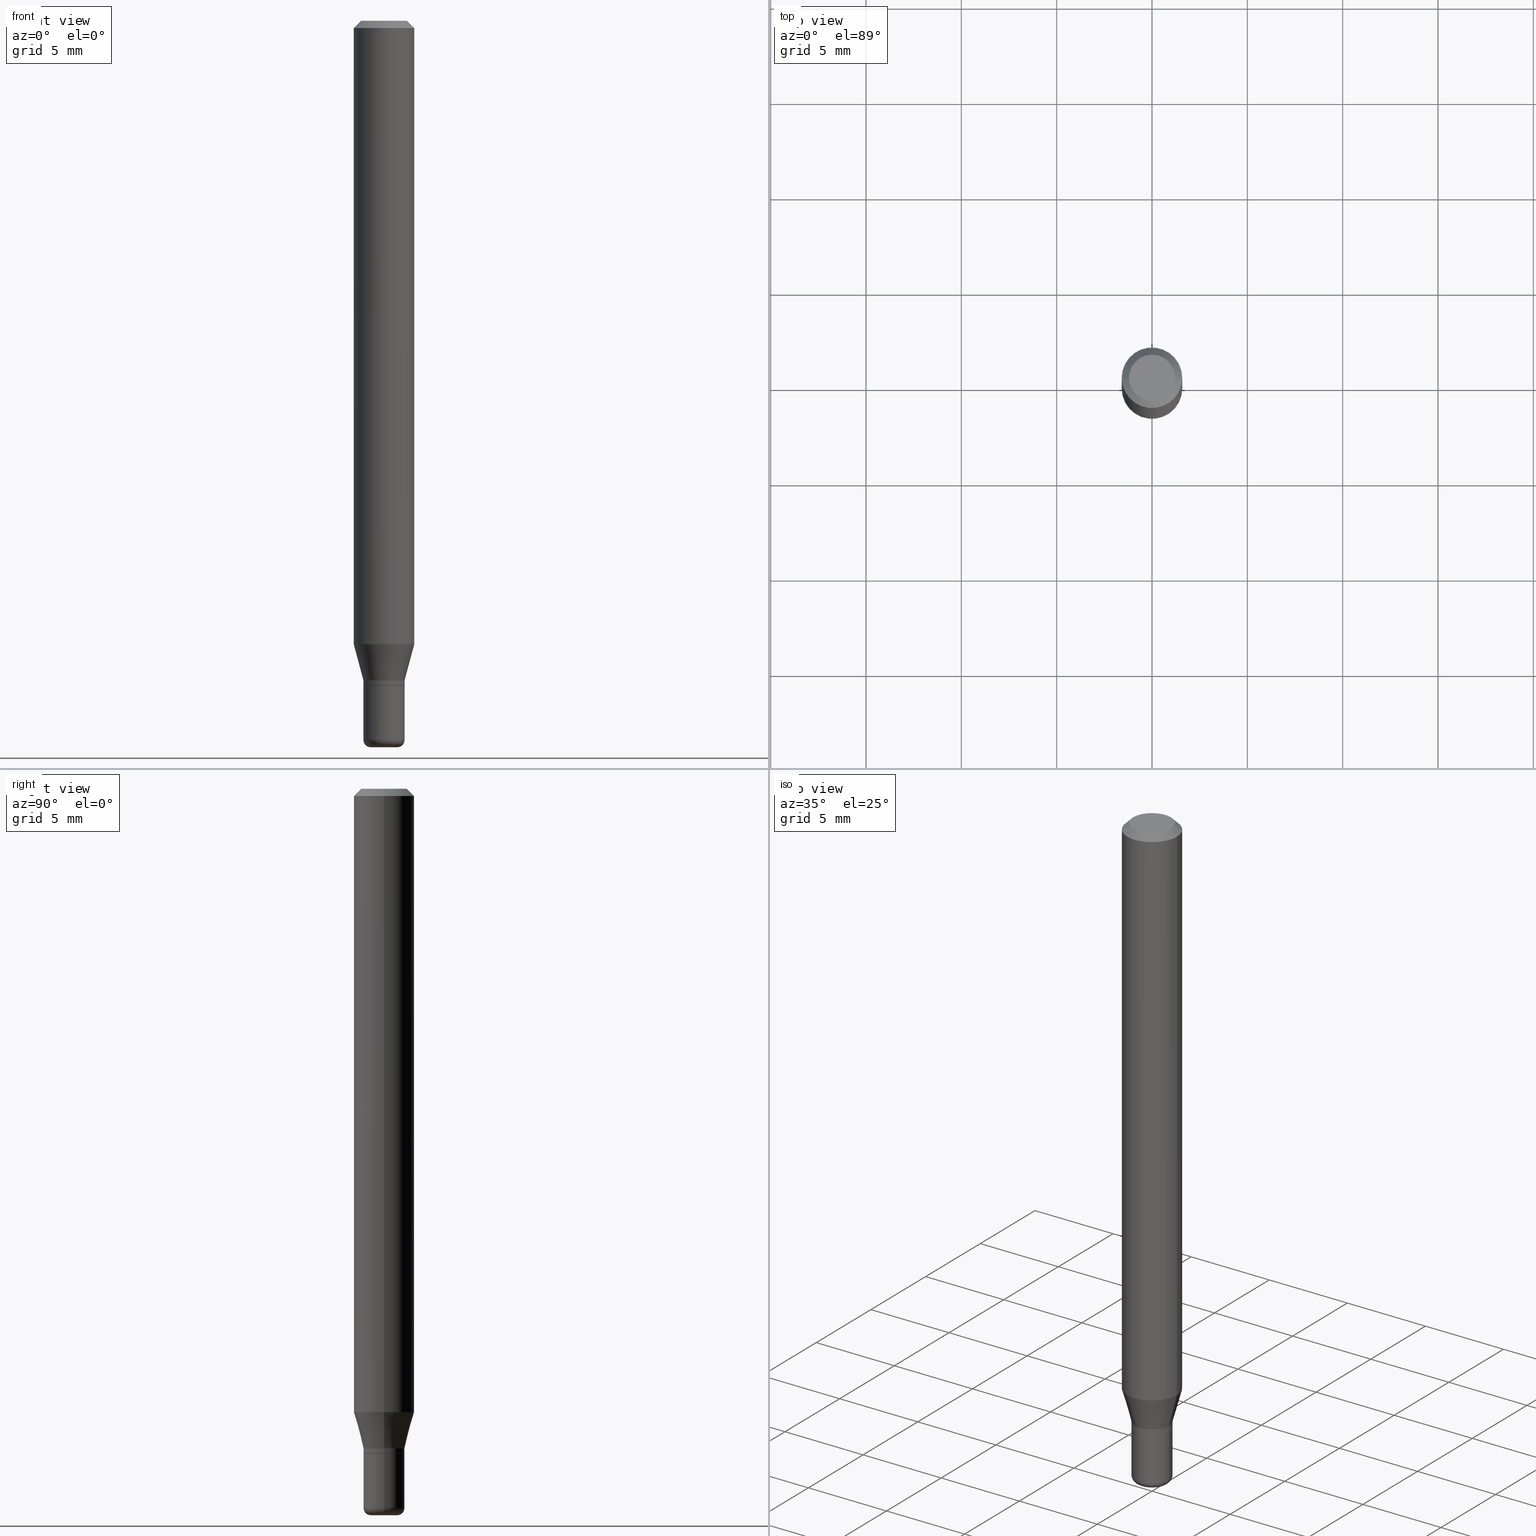
[diagram: canonical four-view strip — front | top / right | iso, engineering-drawing reading convention]
A machine part, canonical four-view strip (front | top / right | iso — engineering-drawing reading convention). The complete STEP part file that produces these views, byte-faithful:
ISO-10303-21;
HEADER;
FILE_DESCRIPTION (( 'STEP AP203' ),
    '1' );
FILE_NAME ('08571.STEP',
    '2024-02-29T19:49:54',
    ( '' ),
    ( '' ),
    'SwSTEP 2.0',
    'SolidWorks 2023',
    '' );
FILE_SCHEMA (( 'CONFIG_CONTROL_DESIGN' ));
ENDSEC;

DATA;
#1 = CARTESIAN_POINT ( 'NONE',  ( -0.06250000000000000000, 3.840629472727455270E-16, -0.01499999999999970281 ) ) ;
#2 = EDGE_CURVE ( 'NONE', #114, #216, #454, .T. ) ;
#3 = ORIENTED_EDGE ( 'NONE', *, *, #85, .F. ) ;
#4 = CARTESIAN_POINT ( 'NONE',  ( 3.316907271900976589E-16, 0.04750000000000000749, -2.925296391183627249E-17 ) ) ;
#5 = CIRCLE ( 'NONE', #23, 0.06250000000000000000 ) ;
#6 = ORIENTED_EDGE ( 'NONE', *, *, #135, .F. ) ;
#7 = LOCAL_TIME ( 14, 49, 54.00000000000000000, #291 ) ;
#8 =( CONVERSION_BASED_UNIT ( 'INCH', #206 ) LENGTH_UNIT ( ) NAMED_UNIT ( #435 ) );
#9 = VERTEX_POINT ( 'NONE', #452 ) ;
#10 = FACE_OUTER_BOUND ( 'NONE', #53, .T. ) ;
#11 = APPROVAL ( #104, 'UNSPECIFIED' ) ;
#12 = DIRECTION ( 'NONE',  ( -2.445468806185136877E-29, 3.491481338843145188E-15, 1.000000000000000000 ) ) ;
#13 = FACE_OUTER_BOUND ( 'NONE', #518, .T. ) ;
#14 = AXIS2_PLACEMENT_3D ( 'NONE', #64, #374, #252 ) ;
#15 = AXIS2_PLACEMENT_3D ( 'NONE', #50, #281, #285 ) ;
#16 = FACE_OUTER_BOUND ( 'NONE', #345, .T. ) ;
#17 = EDGE_LOOP ( 'NONE', ( #144, #395, #354, #402 ) ) ;
#18 = PERSON_AND_ORGANIZATION ( #307, #495 ) ;
#19 = LINE ( 'NONE', #178, #339 ) ;
#20 = EDGE_CURVE ( 'NONE', #303, #200, #211, .T. ) ;
#21 = CALENDAR_DATE ( 2024, 29, 2 ) ;
#22 = DIRECTION ( 'NONE',  ( 1.000000000000000000, -6.982962677686273810E-15, 0.000000000000000000 ) ) ;
#23 = AXIS2_PLACEMENT_3D ( 'NONE', #484, #133, #51 ) ;
#24 = CONICAL_SURFACE ( 'NONE', #131, 0.06250000000000000000, 0.7853981633974488341 ) ;
#25 = DIRECTION ( 'NONE',  ( 1.000000000000000000, -6.982962677686276966E-15, 0.000000000000000000 ) ) ;
#26 = DIRECTION ( 'NONE',  ( 1.000000000000000000, -6.982962677686262766E-15, 0.000000000000000000 ) ) ;
#27 = ADVANCED_FACE ( 'NONE', ( #93 ), #467, .T. ) ;
#28 = PERSON_AND_ORGANIZATION ( #307, #495 ) ;
#29 = AXIS2_PLACEMENT_3D ( 'NONE', #141, #298, #459 ) ;
#30 = AXIS2_PLACEMENT_3D ( 'NONE', #165, #404, #326 ) ;
#31 = LINE ( 'NONE', #150, #358 ) ;
#32 = ORIENTED_EDGE ( 'NONE', *, *, #212, .T. ) ;
#33 = DIRECTION ( 'NONE',  ( -2.445468806185136597E-29, 3.491481338843145583E-15, 1.000000000000000000 ) ) ;
#34 = VERTEX_POINT ( 'NONE', #320 ) ;
#35 = ADVANCED_FACE ( 'NONE', ( #361 ), #166, .T. ) ;
#36 = DIRECTION ( 'NONE',  ( 1.000000000000000000, -6.982962677686276966E-15, 0.000000000000000000 ) ) ;
#37 = ORIENTED_EDGE ( 'NONE', *, *, #338, .F. ) ;
#38 = AXIS2_PLACEMENT_3D ( 'NONE', #86, #48, #134 ) ;
#39 = CARTESIAN_POINT ( 'NONE',  ( 3.356405936489099934E-29, -4.792058137562217412E-15, -1.372500000000000275 ) ) ;
#40 = LOCAL_TIME ( 14, 49, 54.00000000000000000, #498 ) ;
#41 = DIRECTION ( 'NONE',  ( -1.000000000000000000, 6.982962677686266711E-15, 0.000000000000000000 ) ) ;
#42 = ORIENTED_EDGE ( 'NONE', *, *, #101, .F. ) ;
#43 = ADVANCED_FACE ( 'NONE', ( #482 ), #327, .T. ) ;
#44 = FACE_OUTER_BOUND ( 'NONE', #516, .T. ) ;
#45 = CARTESIAN_POINT ( 'NONE',  ( 3.330728514024156148E-29, -4.755397583504364259E-15, -1.362000000000000099 ) ) ;
#46 = CARTESIAN_POINT ( 'NONE',  ( 0.000000000000000000, 0.000000000000000000, 0.000000000000000000 ) ) ;
#47 = AXIS2_PLACEMENT_3D ( 'NONE', #89, #244, #405 ) ;
#48 = DIRECTION ( 'NONE',  ( -2.445468806185136597E-29, 3.491481338843145583E-15, 1.000000000000000000 ) ) ;
#49 = ORIENTED_EDGE ( 'NONE', *, *, #429, .F. ) ;
#50 = CARTESIAN_POINT ( 'NONE',  ( 3.668203209277704895E-29, -5.237222008264718177E-15, -1.500000000000000222 ) ) ;
#51 = DIRECTION ( 'NONE',  ( 1.000000000000000000, -6.982962677686266711E-15, 0.000000000000000000 ) ) ;
#52 = ORIENTED_EDGE ( 'NONE', *, *, #264, .T. ) ;
#53 = EDGE_LOOP ( 'NONE', ( #511, #479 ) ) ;
#54 = CARTESIAN_POINT ( 'NONE',  ( 0.04249999999999998918, -2.967759138016663056E-16, 2.072375129713272151E-30 ) ) ;
#55 = VERTEX_POINT ( 'NONE', #490 ) ;
#56 = CIRCLE ( 'NONE', #147, 0.06250000000000000000 ) ;
#57 = APPROVAL_PERSON_ORGANIZATION ( #28, #246, #258 ) ;
#58 = EDGE_CURVE ( 'NONE', #216, #114, #5, .T. ) ;
#59 = CARTESIAN_POINT ( 'NONE',  ( 0.04250000000000000999, -5.052173497306030910E-15, -1.362000000000000099 ) ) ;
#60 = APPROVAL_ROLE ( '' ) ;
#61 = APPROVAL_DATE_TIME ( #336, #246 ) ;
#62 = CIRCLE ( 'NONE', #129, 0.06250000000000000000 ) ;
#63 = PERSON_AND_ORGANIZATION ( #307, #495 ) ;
#64 = CARTESIAN_POINT ( 'NONE',  ( 3.330728514024156148E-29, -4.755397583504364259E-15, -1.362000000000000099 ) ) ;
#65 = EDGE_CURVE ( 'NONE', #234, #55, #269, .T. ) ;
#66 = DATE_AND_TIME ( #21, #7 ) ;
#67 = CARTESIAN_POINT ( 'NONE',  ( 3.668203209277632395E-31, -5.237222008264614861E-17, -0.01499999999999970281 ) ) ;
#68 = VECTOR ( 'NONE', #394, 39.37007874015748143 ) ;
#69 = LOCAL_TIME ( 14, 49, 54.00000000000000000, #458 ) ;
#70 = CC_DESIGN_PERSON_AND_ORGANIZATION_ASSIGNMENT ( #500, #263, ( #247 ) ) ;
#71 = CARTESIAN_POINT ( 'NONE',  ( 0.06250000000000000000, -4.888073874380378612E-16, -0.01499999999999970281 ) ) ;
#72 = ORIENTED_EDGE ( 'NONE', *, *, #101, .T. ) ;
#73 = DIRECTION ( 'NONE',  ( -2.445468806185136597E-29, 3.491481338843145583E-15, 1.000000000000000000 ) ) ;
#74 = EDGE_LOOP ( 'NONE', ( #249, #329, #266, #364 ) ) ;
#75 = DIRECTION ( 'NONE',  ( -0.7071067811864267805, 7.493145998869918709E-15, 0.7071067811866682540 ) ) ;
#76 = EDGE_LOOP ( 'NONE', ( #389, #154, #350, #323 ) ) ;
#77 = AXIS2_PLACEMENT_3D ( 'NONE', #378, #456, #184 ) ;
#78 = CARTESIAN_POINT ( 'NONE',  ( 3.355183202086007133E-29, -4.790312396892795908E-15, -1.372000000000000108 ) ) ;
#79 = ORIENTED_EDGE ( 'NONE', *, *, #471, .T. ) ;
#80 = ADVANCED_FACE ( 'NONE', ( #130 ), #207, .T. ) ;
#81 =( LENGTH_UNIT ( ) NAMED_UNIT ( * ) SI_UNIT ( $, .METRE. ) );
#82 = EDGE_LOOP ( 'NONE', ( #3, #445, #282, #190 ) ) ;
#83 = DIRECTION ( 'NONE',  ( 1.000000000000000000, -6.982962677686279332E-15, 0.000000000000000000 ) ) ;
#84 = CYLINDRICAL_SURFACE ( 'NONE', #315, 0.04249999999999998918 ) ;
#85 = EDGE_CURVE ( 'NONE', #508, #470, #478, .T. ) ;
#86 = CARTESIAN_POINT ( 'NONE',  ( 3.668203209277632395E-31, -5.237222008264614861E-17, -0.01499999999999970281 ) ) ;
#87 = AXIS2_PLACEMENT_3D ( 'NONE', #309, #475, #277 ) ;
#88 = PLANE ( 'NONE',  #198 ) ;
#89 = CARTESIAN_POINT ( 'NONE',  ( -6.680649051745406845E-45, 9.538196290434862081E-31, 2.731847993664263218E-16 ) ) ;
#90 =( NAMED_UNIT ( * ) SI_UNIT ( $, .STERADIAN. ) SOLID_ANGLE_UNIT ( ) );
#91 = ORIENTED_EDGE ( 'NONE', *, *, #362, .F. ) ;
#92 = ADVANCED_FACE ( 'NONE', ( #13 ), #84, .T. ) ;
#93 = FACE_OUTER_BOUND ( 'NONE', #172, .T. ) ;
#94 = CLOSED_SHELL ( 'NONE', ( #512, #238, #344, #80, #27, #175, #35, #414, #420, #253, #436, #43 ) ) ;
#95 = APPROVAL ( #136, 'UNSPECIFIED' ) ;
#96 = PERSON_AND_ORGANIZATION_ROLE ( 'creator' ) ;
#97 = CARTESIAN_POINT ( 'NONE',  ( 3.330728514024156148E-29, -4.755397583504364259E-15, -1.362000000000000099 ) ) ;
#98 = PERSON_AND_ORGANIZATION ( #307, #495 ) ;
#99 = PERSON_AND_ORGANIZATION_ROLE ( 'classification_officer' ) ;
#100 = CYLINDRICAL_SURFACE ( 'NONE', #77, 0.04249999999999998918 ) ;
#101 = EDGE_CURVE ( 'NONE', #259, #127, #62, .T. ) ;
#102 = CIRCLE ( 'NONE', #14, 0.04250000000000000999 ) ;
#103 = TOROIDAL_SURFACE ( 'NONE', #119, 0.02749999999999999667, 0.01499999999999999424 ) ;
#104 = APPROVAL_STATUS ( 'not_yet_approved' ) ;
#105 = CARTESIAN_POINT ( 'NONE',  ( 3.582686580359766038E-29, -5.359686688179453325E-15, -1.500000000000000222 ) ) ;
#106 = PLANE ( 'NONE',  #351 ) ;
#107 = ADVANCED_FACE ( 'NONE', ( #501 ), #340, .F. ) ;
#108 = ORIENTED_EDGE ( 'NONE', *, *, #219, .T. ) ;
#109 = DIRECTION ( 'NONE',  ( 1.000000000000000000, -6.982962677686273810E-15, 0.000000000000000000 ) ) ;
#110 = ORIENTED_EDGE ( 'NONE', *, *, #245, .F. ) ;
#111 = AXIS2_PLACEMENT_3D ( 'NONE', #188, #115, #109 ) ;
#112 = CIRCLE ( 'NONE', #181, 0.04199999999999998873 ) ;
#113 = DIRECTION ( 'NONE',  ( 1.000000000000000000, -6.982962677686276177E-15, 0.000000000000000000 ) ) ;
#114 = VERTEX_POINT ( 'NONE', #218 ) ;
#115 = DIRECTION ( 'NONE',  ( -2.445468806185136597E-29, 3.491481338843145583E-15, 1.000000000000000000 ) ) ;
#116 = VERTEX_POINT ( 'NONE', #146 ) ;
#117 = DIRECTION ( 'NONE',  ( 1.000000000000000000, -6.982962677686276966E-15, 4.883557194083116825E-29 ) ) ;
#118 = ORIENTED_EDGE ( 'NONE', *, *, #203, .F. ) ;
#119 = AXIS2_PLACEMENT_3D ( 'NONE', #422, #199, #117 ) ;
#120 = CARTESIAN_POINT ( 'NONE',  ( -0.04750000000000000749, 3.578768372314221353E-16, 2.731847993664239060E-16 ) ) ;
#121 = DIRECTION ( 'NONE',  ( -1.000000000000000000, 6.982962677686266711E-15, 0.000000000000000000 ) ) ;
#122 = ORIENTED_EDGE ( 'NONE', *, *, #480, .F. ) ;
#123 = CARTESIAN_POINT ( 'NONE',  ( 0.000000000000000000, 0.000000000000000000, 0.000000000000000000 ) ) ;
#124 = EDGE_CURVE ( 'NONE', #127, #259, #56, .T. ) ;
#125 = DIRECTION ( 'NONE',  ( 2.438088387897960049E-29, -3.491481338843145188E-15, -1.000000000000000000 ) ) ;
#126 = DIRECTION ( 'NONE',  ( 0.7071067811864267805, -2.468850131080992517E-15, 0.7071067811866682540 ) ) ;
#127 = VERTEX_POINT ( 'NONE', #149 ) ;
#128 = DIRECTION ( 'NONE',  ( -2.445468806185136597E-29, 3.491481338843145583E-15, 1.000000000000000000 ) ) ;
#129 = AXIS2_PLACEMENT_3D ( 'NONE', #296, #220, #26 ) ;
#130 = FACE_OUTER_BOUND ( 'NONE', #426, .T. ) ;
#131 = AXIS2_PLACEMENT_3D ( 'NONE', #438, #168, #121 ) ;
#132 = CYLINDRICAL_SURFACE ( 'NONE', #156, 0.04249999999999999611 ) ;
#133 = DIRECTION ( 'NONE',  ( -2.445468806185136597E-29, 3.491481338843145583E-15, 1.000000000000000000 ) ) ;
#134 = DIRECTION ( 'NONE',  ( 1.000000000000000000, -6.982962677686266711E-15, 0.000000000000000000 ) ) ;
#135 = EDGE_CURVE ( 'NONE', #151, #322, #102, .T. ) ;
#136 = APPROVAL_STATUS ( 'not_yet_approved' ) ;
#137 = CARTESIAN_POINT ( 'NONE',  ( 3.148196237364001258E-29, -4.494789868499539856E-15, -1.287358983848622573 ) ) ;
#138 = VECTOR ( 'NONE', #229, 39.37007874015748143 ) ;
#139 = CC_DESIGN_APPROVAL ( #246, ( #333 ) ) ;
#140 = SECURITY_CLASSIFICATION_LEVEL ( 'unclassified' ) ;
#141 = CARTESIAN_POINT ( 'NONE',  ( -6.680649051745406845E-45, 9.538196290434862081E-31, 2.731847993664263218E-16 ) ) ;
#142 = EDGE_CURVE ( 'NONE', #55, #476, #214, .T. ) ;
#143 = PERSON_AND_ORGANIZATION ( #307, #495 ) ;
#144 = ORIENTED_EDGE ( 'NONE', *, *, #182, .F. ) ;
#145 = FACE_OUTER_BOUND ( 'NONE', #357, .T. ) ;
#146 = CARTESIAN_POINT ( 'NONE',  ( -0.04249999999999998918, -4.488331734194752667E-15, -1.372000000000000108 ) ) ;
#147 = AXIS2_PLACEMENT_3D ( 'NONE', #137, #505, #464 ) ;
#148 = CIRCLE ( 'NONE', #241, 0.04249999999999998918 ) ;
#149 = CARTESIAN_POINT ( 'NONE',  ( -0.06250000000000000000, -4.050700658649477240E-15, -1.287358983848622573 ) ) ;
#150 = CARTESIAN_POINT ( 'NONE',  ( -0.06250000000000000000, 4.440892098500626162E-16, -3.074334431409316114E-30 ) ) ;
#151 = VERTEX_POINT ( 'NONE', #59 ) ;
#152 = CC_DESIGN_PERSON_AND_ORGANIZATION_ASSIGNMENT ( #177, #183, ( #316 ) ) ;
#153 = DIRECTION ( 'NONE',  ( 1.000000000000000000, -6.982962677686265133E-15, 0.000000000000000000 ) ) ;
#154 = ORIENTED_EDGE ( 'NONE', *, *, #124, .T. ) ;
#155 = AXIS2_PLACEMENT_3D ( 'NONE', #289, #439, #446 ) ;
#156 = AXIS2_PLACEMENT_3D ( 'NONE', #46, #202, #213 ) ;
#157 = CARTESIAN_POINT ( 'NONE',  ( -0.02750000000000000014, -4.962345940707360337E-15, -1.500000000000000222 ) ) ;
#158 = ORIENTED_EDGE ( 'NONE', *, *, #429, .T. ) ;
#159 = ADVANCED_FACE ( 'NONE', ( #372 ), #100, .T. ) ;
#160 = FACE_OUTER_BOUND ( 'NONE', #82, .T. ) ;
#161 = ORIENTED_EDGE ( 'NONE', *, *, #135, .T. ) ;
#162 = DIRECTION ( 'NONE',  ( 1.000000000000000000, -6.982962677686276177E-15, 0.000000000000000000 ) ) ;
#163 = ORIENTED_EDGE ( 'NONE', *, *, #85, .T. ) ;
#164 =( GEOMETRIC_REPRESENTATION_CONTEXT ( 3 ) GLOBAL_UNCERTAINTY_ASSIGNED_CONTEXT ( ( #510 ) ) GLOBAL_UNIT_ASSIGNED_CONTEXT ( ( #8, #365, #90 ) ) REPRESENTATION_CONTEXT ( 'NONE', 'WORKASPACE' ) );
#165 = CARTESIAN_POINT ( 'NONE',  ( 3.356405936489099934E-29, -4.792058137562217412E-15, -1.372500000000000275 ) ) ;
#166 = CYLINDRICAL_SURFACE ( 'NONE', #235, 0.06250000000000000000 ) ;
#167 = EDGE_CURVE ( 'NONE', #322, #127, #19, .T. ) ;
#168 = DIRECTION ( 'NONE',  ( 2.445468806185136597E-29, -3.491481338843145583E-15, -1.000000000000000000 ) ) ;
#169 = ORIENTED_EDGE ( 'NONE', *, *, #65, .T. ) ;
#170 = PLANE ( 'NONE',  #375 ) ;
#171 = DIRECTION ( 'NONE',  ( 1.000000000000000000, -6.982962677686273810E-15, 0.000000000000000000 ) ) ;
#172 = EDGE_LOOP ( 'NONE', ( #161, #185, #42, #385 ) ) ;
#173 = CIRCLE ( 'NONE', #15, 0.02750000000000000014 ) ;
#174 = CARTESIAN_POINT ( 'NONE',  ( 3.631521177184928138E-29, -5.184849788182071492E-15, -1.485000000000000098 ) ) ;
#175 = ADVANCED_FACE ( 'NONE', ( #145 ), #407, .T. ) ;
#176 = EDGE_LOOP ( 'NONE', ( #474, #507, #406, #275 ) ) ;
#177 = PERSON_AND_ORGANIZATION ( #307, #495 ) ;
#178 = CARTESIAN_POINT ( 'NONE',  ( -0.04250000000000000999, -4.453416920806321806E-15, -1.362000000000000099 ) ) ;
#179 = APPROVAL_DATE_TIME ( #66, #95 ) ;
#180 = CARTESIAN_POINT ( 'NONE',  ( 0.06250000000000000000, -4.811533449433669144E-16, -0.01499999999999970281 ) ) ;
#181 = AXIS2_PLACEMENT_3D ( 'NONE', #388, #353, #517 ) ;
#182 = EDGE_CURVE ( 'NONE', #116, #322, #461, .T. ) ;
#183 = PERSON_AND_ORGANIZATION_ROLE ( 'design_supplier' ) ;
#184 = DIRECTION ( 'NONE',  ( 1.000000000000000000, -6.982962677686267499E-15, 4.876176775795935793E-29 ) ) ;
#185 = ORIENTED_EDGE ( 'NONE', *, *, #167, .T. ) ;
#186 = AXIS2_PLACEMENT_3D ( 'NONE', #448, #487, #284 ) ;
#187 = AXIS2_PLACEMENT_3D ( 'NONE', #67, #382, #41 ) ;
#188 = CARTESIAN_POINT ( 'NONE',  ( 3.330728514024156148E-29, -4.755397583504364259E-15, -1.362000000000000099 ) ) ;
#189 = CC_DESIGN_DATE_AND_TIME_ASSIGNMENT ( #225, #377, ( #333 ) ) ;
#190 = ORIENTED_EDGE ( 'NONE', *, *, #212, .F. ) ;
#191 = ORIENTED_EDGE ( 'NONE', *, *, #203, .T. ) ;
#192 = CARTESIAN_POINT ( 'NONE',  ( 0.06250000000000000000, -4.931225035854931526E-15, -1.287358983848622573 ) ) ;
#193 = ORIENTED_EDGE ( 'NONE', *, *, #293, .F. ) ;
#194 = CARTESIAN_POINT ( 'NONE',  ( 3.356405936489099934E-29, -4.792058137562217412E-15, -1.372500000000000275 ) ) ;
#195 = ORIENTED_EDGE ( 'NONE', *, *, #480, .T. ) ;
#196 = EDGE_CURVE ( 'NONE', #508, #216, #411, .T. ) ;
#197 = AXIS2_PLACEMENT_3D ( 'NONE', #105, #337, #380 ) ;
#198 = AXIS2_PLACEMENT_3D ( 'NONE', #4, #125, #243 ) ;
#199 = DIRECTION ( 'NONE',  ( -2.445468806185136597E-29, 3.491481338843145583E-15, 1.000000000000000000 ) ) ;
#200 = VERTEX_POINT ( 'NONE', #497 ) ;
#201 = CARTESIAN_POINT ( 'NONE',  ( 0.04249999999999999611, -2.967759138016663549E-16, 2.072375129713272502E-30 ) ) ;
#202 = DIRECTION ( 'NONE',  ( -2.445468806185136597E-29, 3.491481338843145583E-15, 1.000000000000000000 ) ) ;
#203 = EDGE_CURVE ( 'NONE', #470, #508, #221, .T. ) ;
#204 = ORIENTED_EDGE ( 'NONE', *, *, #196, .F. ) ;
#205 = CIRCLE ( 'NONE', #261, 0.04249999999999999611 ) ;
#206 = LENGTH_MEASURE_WITH_UNIT ( LENGTH_MEASURE( 0.02539999999999999897 ), #81 );
#207 = CYLINDRICAL_SURFACE ( 'NONE', #155, 0.06250000000000000000 ) ;
#208 = DIRECTION ( 'NONE',  ( -1.000000000000000000, 6.982962677686265922E-15, -4.876176775795935793E-29 ) ) ;
#209 = ORIENTED_EDGE ( 'NONE', *, *, #449, .T. ) ;
#210 = ORIENTED_EDGE ( 'NONE', *, *, #449, .F. ) ;
#211 = LINE ( 'NONE', #292, #324 ) ;
#212 = EDGE_CURVE ( 'NONE', #470, #114, #257, .T. ) ;
#213 = DIRECTION ( 'NONE',  ( 1.000000000000000000, -6.982962677686267499E-15, 4.876176775795935793E-29 ) ) ;
#214 = CIRCLE ( 'NONE', #502, 0.04249999999999998918 ) ;
#215 = CC_DESIGN_APPROVAL ( #95, ( #316 ) ) ;
#216 = VERTEX_POINT ( 'NONE', #71 ) ;
#217 = DATE_TIME_ROLE ( 'creation_date' ) ;
#218 = CARTESIAN_POINT ( 'NONE',  ( -0.06250000000000000000, -1.829491834441030260E-15, -0.01499999999999970281 ) ) ;
#219 = EDGE_CURVE ( 'NONE', #127, #114, #31, .T. ) ;
#220 = DIRECTION ( 'NONE',  ( -2.445468806185136597E-29, 3.491481338843145583E-15, 1.000000000000000000 ) ) ;
#221 = CIRCLE ( 'NONE', #29, 0.04750000000000000749 ) ;
#222 = CIRCLE ( 'NONE', #515, 0.04249999999999998918 ) ;
#223 = COORDINATED_UNIVERSAL_TIME_OFFSET ( 5, 0, .BEHIND. ) ;
#224 = DIRECTION ( 'NONE',  ( -2.445468806185136597E-29, 3.491481338843145583E-15, 1.000000000000000000 ) ) ;
#225 = DATE_AND_TIME ( #460, #280 ) ;
#226 = EDGE_CURVE ( 'NONE', #322, #151, #332, .T. ) ;
#227 = PRODUCT_DEFINITION ( 'UNKNOWN', '', #316, #349 ) ;
#228 = FACE_OUTER_BOUND ( 'NONE', #343, .T. ) ;
#229 = DIRECTION ( 'NONE',  ( -2.445468806185136877E-29, 3.491481338843145188E-15, 1.000000000000000000 ) ) ;
#230 = CARTESIAN_POINT ( 'NONE',  ( 3.355183202086007133E-29, -4.790312396892795908E-15, -1.372000000000000108 ) ) ;
#231 = ORIENTED_EDGE ( 'NONE', *, *, #300, .F. ) ;
#232 = EDGE_CURVE ( 'NONE', #200, #151, #346, .T. ) ;
#233 = CARTESIAN_POINT ( 'NONE',  ( -0.04249999999999999611, -4.686473300174102393E-15, -1.372500000000000275 ) ) ;
#234 = VERTEX_POINT ( 'NONE', #157 ) ;
#235 = AXIS2_PLACEMENT_3D ( 'NONE', #290, #317, #403 ) ;
#236 = CARTESIAN_POINT ( 'NONE',  ( 3.356405936489099934E-29, -4.792058137562217412E-15, -1.372500000000000275 ) ) ;
#237 = ORIENTED_EDGE ( 'NONE', *, *, #124, .F. ) ;
#238 = ADVANCED_FACE ( 'NONE', ( #342 ), #494, .T. ) ;
#239 = LINE ( 'NONE', #54, #391 ) ;
#240 = CARTESIAN_POINT ( 'NONE',  ( 0.000000000000000000, 0.000000000000000000, 0.000000000000000000 ) ) ;
#241 = AXIS2_PLACEMENT_3D ( 'NONE', #174, #128, #283 ) ;
#242 = DIRECTION ( 'NONE',  ( -2.445468806185136597E-29, 3.491481338843145583E-15, 1.000000000000000000 ) ) ;
#243 = DIRECTION ( 'NONE',  ( -1.000000000000000000, 6.982962677686265922E-15, -4.876176775795935793E-29 ) ) ;
#244 = DIRECTION ( 'NONE',  ( -2.445468806185136597E-29, 3.491481338843145583E-15, 1.000000000000000000 ) ) ;
#245 = EDGE_CURVE ( 'NONE', #424, #306, #205, .T. ) ;
#246 = APPROVAL ( #491, 'UNSPECIFIED' ) ;
#247 = PRODUCT ( '08571', '08571', '', ( #328 ) ) ;
#248 = FACE_OUTER_BOUND ( 'NONE', #428, .T. ) ;
#249 = ORIENTED_EDGE ( 'NONE', *, *, #330, .F. ) ;
#250 = VECTOR ( 'NONE', #334, 39.37007874015748143 ) ;
#251 = VECTOR ( 'NONE', #12, 39.37007874015748143 ) ;
#252 = DIRECTION ( 'NONE',  ( 1.000000000000000000, -6.982962677686273810E-15, 0.000000000000000000 ) ) ;
#253 = ADVANCED_FACE ( 'NONE', ( #228 ), #106, .F. ) ;
#254 = COORDINATED_UNIVERSAL_TIME_OFFSET ( 5, 0, .BEHIND. ) ;
#255 = CARTESIAN_POINT ( 'NONE',  ( -0.04249999999999999611, 3.019806626980425514E-16, -2.090547413358334859E-30 ) ) ;
#256 = APPROVAL_ROLE ( '' ) ;
#257 = LINE ( 'NONE', #1, #68 ) ;
#258 = APPROVAL_ROLE ( '' ) ;
#259 = VERTEX_POINT ( 'NONE', #192 ) ;
#260 = DIRECTION ( 'NONE',  ( -2.445468806185136877E-29, 3.491481338843145188E-15, 1.000000000000000000 ) ) ;
#261 = AXIS2_PLACEMENT_3D ( 'NONE', #39, #33, #162 ) ;
#262 = AXIS2_PLACEMENT_3D ( 'NONE', #370, #413, #294 ) ;
#263 = PERSON_AND_ORGANIZATION_ROLE ( 'design_owner' ) ;
#264 = EDGE_CURVE ( 'NONE', #151, #259, #302, .T. ) ;
#265 = DIRECTION ( 'NONE',  ( 1.000000000000000000, -6.982962677686270655E-15, 0.000000000000000000 ) ) ;
#266 = ORIENTED_EDGE ( 'NONE', *, *, #20, .T. ) ;
#267 = FACE_OUTER_BOUND ( 'NONE', #176, .T. ) ;
#268 = ORIENTED_EDGE ( 'NONE', *, *, #338, .T. ) ;
#269 = CIRCLE ( 'NONE', #186, 0.01499999999999999424 ) ;
#270 = MANIFOLD_SOLID_BREP ( 'Body-Move/Copy2[2]', #94 ) ;
#271 = EDGE_CURVE ( 'NONE', #9, #476, #295, .T. ) ;
#272 = DIRECTION ( 'NONE',  ( -2.438088387897960049E-29, 3.491481338843145188E-15, 1.000000000000000000 ) ) ;
#273 = CC_DESIGN_PERSON_AND_ORGANIZATION_ASSIGNMENT ( #18, #96, ( #227 ) ) ;
#274 = LINE ( 'NONE', #427, #287 ) ;
#275 = ORIENTED_EDGE ( 'NONE', *, *, #142, .F. ) ;
#276 = MANIFOLD_SOLID_BREP ( 'Body-Move/Copy2[1]', #390 ) ;
#277 = DIRECTION ( 'NONE',  ( 1.000000000000000000, -6.982962677686265133E-15, 0.000000000000000000 ) ) ;
#278 = ORIENTED_EDGE ( 'NONE', *, *, #20, .F. ) ;
#279 = AXIS2_PLACEMENT_3D ( 'NONE', #123, #441, #366 ) ;
#280 = LOCAL_TIME ( 14, 49, 54.00000000000000000, #223 ) ;
#281 = DIRECTION ( 'NONE',  ( -2.445468806185136597E-29, 3.491481338843145583E-15, 1.000000000000000000 ) ) ;
#282 = ORIENTED_EDGE ( 'NONE', *, *, #58, .T. ) ;
#283 = DIRECTION ( 'NONE',  ( 1.000000000000000000, -6.982962677686276966E-15, 0.000000000000000000 ) ) ;
#284 = DIRECTION ( 'NONE',  ( -1.000000000000000000, 7.105427357600993970E-15, 0.000000000000000000 ) ) ;
#285 = DIRECTION ( 'NONE',  ( 1.000000000000000000, -6.982962677686279332E-15, 0.000000000000000000 ) ) ;
#286 = ORIENTED_EDGE ( 'NONE', *, *, #471, .F. ) ;
#287 = VECTOR ( 'NONE', #75, 39.37007874015748143 ) ;
#288 = CARTESIAN_POINT ( 'NONE',  ( 0.04750000000000000749, -4.035134999187568762E-16, 2.731847993664288856E-16 ) ) ;
#289 = CARTESIAN_POINT ( 'NONE',  ( 0.000000000000000000, 0.000000000000000000, 0.000000000000000000 ) ) ;
#290 = CARTESIAN_POINT ( 'NONE',  ( 0.000000000000000000, 0.000000000000000000, 0.000000000000000000 ) ) ;
#291 = COORDINATED_UNIVERSAL_TIME_OFFSET ( 5, 0, .BEHIND. ) ;
#292 = CARTESIAN_POINT ( 'NONE',  ( 0.04199999999999998873, -5.085342570025040266E-15, -1.372500000000000275 ) ) ;
#293 = EDGE_CURVE ( 'NONE', #306, #424, #463, .T. ) ;
#294 = DIRECTION ( 'NONE',  ( 1.000000000000000000, 0.000000000000000000, 0.000000000000000000 ) ) ;
#295 = CIRCLE ( 'NONE', #367, 0.01499999999999999424 ) ;
#296 = CARTESIAN_POINT ( 'NONE',  ( 3.148196237364001258E-29, -4.494789868499539856E-15, -1.287358983848622573 ) ) ;
#297 = CALENDAR_DATE ( 2024, 29, 2 ) ;
#298 = DIRECTION ( 'NONE',  ( -2.445468806185136597E-29, 3.491481338843145583E-15, 1.000000000000000000 ) ) ;
#299 = PERSON_AND_ORGANIZATION_ROLE ( 'creator' ) ;
#300 = EDGE_CURVE ( 'NONE', #200, #116, #222, .T. ) ;
#301 = AXIS2_PLACEMENT_3D ( 'NONE', #321, #433, #83 ) ;
#302 = LINE ( 'NONE', #466, #416 ) ;
#303 = VERTEX_POINT ( 'NONE', #421 ) ;
#304 = ADVANCED_FACE ( 'NONE', ( #267 ), #103, .T. ) ;
#305 = CARTESIAN_POINT ( 'NONE',  ( 0.02749999999999999667, -5.376881261818443984E-15, -1.485000000000000098 ) ) ;
#306 = VERTEX_POINT ( 'NONE', #233 ) ;
#307 = PERSON ( 'UNSPECIFIED', 'UNSPECIFIED', 'UNSPECIFIED', ('UNSPECIFIED'), ('UNSPECIFIED'), ('UNSPECIFIED') ) ;
#308 = ORIENTED_EDGE ( 'NONE', *, *, #226, .T. ) ;
#309 = CARTESIAN_POINT ( 'NONE',  ( 3.356405936489099934E-29, -4.792058137562217412E-15, -1.372500000000000275 ) ) ;
#310 = ORIENTED_EDGE ( 'NONE', *, *, #330, .T. ) ;
#311 = DIRECTION ( 'NONE',  ( -6.982962677686266711E-15, -1.000000000000000000, 3.491481338843145583E-15 ) ) ;
#312 = ORIENTED_EDGE ( 'NONE', *, *, #182, .T. ) ;
#313 = ORIENTED_EDGE ( 'NONE', *, *, #300, .T. ) ;
#314 = EDGE_CURVE ( 'NONE', #116, #200, #352, .T. ) ;
#315 = AXIS2_PLACEMENT_3D ( 'NONE', #240, #398, #465 ) ;
#316 = PRODUCT_DEFINITION_FORMATION_WITH_SPECIFIED_SOURCE ( 'ANY', '', #247, .NOT_KNOWN. ) ;
#317 = DIRECTION ( 'NONE',  ( -2.445468806185136597E-29, 3.491481338843145583E-15, 1.000000000000000000 ) ) ;
#318 = FACE_OUTER_BOUND ( 'NONE', #74, .T. ) ;
#319 = ORIENTED_EDGE ( 'NONE', *, *, #2, .T. ) ;
#320 = CARTESIAN_POINT ( 'NONE',  ( -0.04199999999999998873, -4.490980961368863868E-15, -1.372500000000000275 ) ) ;
#321 = CARTESIAN_POINT ( 'NONE',  ( 3.668203209277704895E-29, -5.237222008264718177E-15, -1.500000000000000222 ) ) ;
#322 = VERTEX_POINT ( 'NONE', #472 ) ;
#323 = ORIENTED_EDGE ( 'NONE', *, *, #2, .F. ) ;
#324 = VECTOR ( 'NONE', #126, 39.37007874015748143 ) ;
#325 = AXIS2_PLACEMENT_3D ( 'NONE', #230, #425, #36 ) ;
#326 = DIRECTION ( 'NONE',  ( 1.000000000000000000, -6.982962677686265133E-15, 0.000000000000000000 ) ) ;
#327 = CYLINDRICAL_SURFACE ( 'NONE', #279, 0.04249999999999999611 ) ;
#328 = MECHANICAL_CONTEXT ( 'NONE', #453, 'mechanical' ) ;
#329 = ORIENTED_EDGE ( 'NONE', *, *, #362, .T. ) ;
#330 = EDGE_CURVE ( 'NONE', #34, #116, #274, .T. ) ;
#331 = CALENDAR_DATE ( 2024, 29, 2 ) ;
#332 = CIRCLE ( 'NONE', #111, 0.04250000000000000999 ) ;
#333 = SECURITY_CLASSIFICATION ( '', '', #140 ) ;
#334 = DIRECTION ( 'NONE',  ( 0.7071067811865479058, -7.319954787623257623E-15, -0.7071067811865471286 ) ) ;
#335 = ORIENTED_EDGE ( 'NONE', *, *, #408, .F. ) ;
#336 = DATE_AND_TIME ( #297, #69 ) ;
#337 = DIRECTION ( 'NONE',  ( -2.438088387897960049E-29, 3.491481338843145188E-15, 1.000000000000000000 ) ) ;
#338 = EDGE_CURVE ( 'NONE', #303, #34, #112, .T. ) ;
#339 = VECTOR ( 'NONE', #499, 39.37007874015748854 ) ;
#340 = PLANE ( 'NONE',  #197 ) ;
#341 = CC_DESIGN_SECURITY_CLASSIFICATION ( #333, ( #316 ) ) ;
#342 = FACE_OUTER_BOUND ( 'NONE', #387, .T. ) ;
#343 = EDGE_LOOP ( 'NONE', ( #37, #91 ) ) ;
#344 = ADVANCED_FACE ( 'NONE', ( #160 ), #409, .T. ) ;
#345 = EDGE_LOOP ( 'NONE', ( #191, #163 ) ) ;
#346 = LINE ( 'NONE', #201, #138 ) ;
#347 = ADVANCED_BREP_SHAPE_REPRESENTATION ( '08571', ( #276, #270, #262 ), #164 ) ;
#348 = DIRECTION ( 'NONE',  ( -2.445468806185136597E-29, 3.491481338843145583E-15, 1.000000000000000000 ) ) ;
#349 = DESIGN_CONTEXT ( 'detailed design', #486, 'design' ) ;
#350 = ORIENTED_EDGE ( 'NONE', *, *, #408, .T. ) ;
#351 = AXIS2_PLACEMENT_3D ( 'NONE', #506, #272, #514 ) ;
#352 = CIRCLE ( 'NONE', #325, 0.04249999999999998918 ) ;
#353 = DIRECTION ( 'NONE',  ( -2.445468806185136597E-29, 3.491481338843145583E-15, 1.000000000000000000 ) ) ;
#354 = ORIENTED_EDGE ( 'NONE', *, *, #232, .T. ) ;
#355 = ORIENTED_EDGE ( 'NONE', *, *, #58, .F. ) ;
#356 = DIRECTION ( 'NONE',  ( -2.445468806185136877E-29, 3.491481338843145188E-15, 1.000000000000000000 ) ) ;
#357 = EDGE_LOOP ( 'NONE', ( #397, #308, #52, #237 ) ) ;
#358 = VECTOR ( 'NONE', #384, 39.37007874015748143 ) ;
#359 = APPROVAL_PERSON_ORGANIZATION ( #63, #95, #256 ) ;
#360 = CARTESIAN_POINT ( 'NONE',  ( 0.04249999999999999611, -5.088834051363884062E-15, -1.372500000000000275 ) ) ;
#361 = FACE_OUTER_BOUND ( 'NONE', #76, .T. ) ;
#362 = EDGE_CURVE ( 'NONE', #34, #303, #443, .T. ) ;
#363 = CARTESIAN_POINT ( 'NONE',  ( -0.04249999999999998918, 3.019806626980425021E-16, -2.090547413358334509E-30 ) ) ;
#364 = ORIENTED_EDGE ( 'NONE', *, *, #314, .F. ) ;
#365 =( NAMED_UNIT ( * ) PLANE_ANGLE_UNIT ( ) SI_UNIT ( $, .RADIAN. ) );
#366 = DIRECTION ( 'NONE',  ( 1.000000000000000000, -6.982962677686267499E-15, 4.876176775795935793E-29 ) ) ;
#367 = AXIS2_PLACEMENT_3D ( 'NONE', #305, #311, #265 ) ;
#368 = DIRECTION ( 'NONE',  ( -2.445468806185136877E-29, 3.491481338843145188E-15, 1.000000000000000000 ) ) ;
#369 = EDGE_LOOP ( 'NONE', ( #79, #169, #210, #431 ) ) ;
#370 = CARTESIAN_POINT ( 'NONE',  ( 0.000000000000000000, 0.000000000000000000, 0.000000000000000000 ) ) ;
#371 = CC_DESIGN_DATE_AND_TIME_ASSIGNMENT ( #496, #217, ( #227 ) ) ;
#372 = FACE_OUTER_BOUND ( 'NONE', #434, .T. ) ;
#373 = DATE_AND_TIME ( #331, #40 ) ;
#374 = DIRECTION ( 'NONE',  ( -2.445468806185136597E-29, 3.491481338843145583E-15, 1.000000000000000000 ) ) ;
#375 = AXIS2_PLACEMENT_3D ( 'NONE', #477, #447, #208 ) ;
#376 = CARTESIAN_POINT ( 'NONE',  ( 3.631521177184928138E-29, -5.184849788182071492E-15, -1.485000000000000098 ) ) ;
#377 = DATE_TIME_ROLE ( 'classification_date' ) ;
#378 = CARTESIAN_POINT ( 'NONE',  ( 0.000000000000000000, 0.000000000000000000, 0.000000000000000000 ) ) ;
#379 = APPROVAL_DATE_TIME ( #373, #11 ) ;
#380 = DIRECTION ( 'NONE',  ( 1.000000000000000000, -6.982962677686265922E-15, 4.876176775795935793E-29 ) ) ;
#381 = AXIS2_PLACEMENT_3D ( 'NONE', #45, #242, #171 ) ;
#382 = DIRECTION ( 'NONE',  ( 2.445468806185136597E-29, -3.491481338843145583E-15, -1.000000000000000000 ) ) ;
#383 = APPROVAL_PERSON_ORGANIZATION ( #451, #11, #60 ) ;
#384 = DIRECTION ( 'NONE',  ( -2.445468806185136877E-29, 3.491481338843145188E-15, 1.000000000000000000 ) ) ;
#385 = ORIENTED_EDGE ( 'NONE', *, *, #264, .F. ) ;
#386 = DIRECTION ( 'NONE',  ( 1.000000000000000000, -6.982962677686276966E-15, 0.000000000000000000 ) ) ;
#387 = EDGE_LOOP ( 'NONE', ( #268, #310, #231, #278 ) ) ;
#388 = CARTESIAN_POINT ( 'NONE',  ( 3.356405936489099934E-29, -4.792058137562217412E-15, -1.372500000000000275 ) ) ;
#389 = ORIENTED_EDGE ( 'NONE', *, *, #219, .F. ) ;
#390 = CLOSED_SHELL ( 'NONE', ( #392, #159, #457, #92, #304, #107 ) ) ;
#391 = VECTOR ( 'NONE', #368, 39.37007874015748143 ) ;
#392 = ADVANCED_FACE ( 'NONE', ( #430 ), #400, .T. ) ;
#393 = PRODUCT_RELATED_PRODUCT_CATEGORY ( 'detail', '', ( #247 ) ) ;
#394 = DIRECTION ( 'NONE',  ( -0.7071067811865479058, 2.468850131082261005E-15, -0.7071067811865471286 ) ) ;
#395 = ORIENTED_EDGE ( 'NONE', *, *, #314, .T. ) ;
#396 = CARTESIAN_POINT ( 'NONE',  ( 3.631521177184928138E-29, -5.184849788182071492E-15, -1.485000000000000098 ) ) ;
#397 = ORIENTED_EDGE ( 'NONE', *, *, #167, .F. ) ;
#398 = DIRECTION ( 'NONE',  ( -2.445468806185136597E-29, 3.491481338843145583E-15, 1.000000000000000000 ) ) ;
#399 = AXIS2_PLACEMENT_3D ( 'NONE', #97, #224, #22 ) ;
#400 = TOROIDAL_SURFACE ( 'NONE', #469, 0.02749999999999999667, 0.01499999999999999424 ) ;
#401 = CARTESIAN_POINT ( 'NONE',  ( 0.06250000000000000000, -4.364351673553916694E-16, 3.047610484872459871E-30 ) ) ;
#402 = ORIENTED_EDGE ( 'NONE', *, *, #226, .F. ) ;
#403 = DIRECTION ( 'NONE',  ( 1.000000000000000000, -6.982962677686266711E-15, 4.876176775795935793E-29 ) ) ;
#404 = DIRECTION ( 'NONE',  ( -2.445468806185136597E-29, 3.491481338843145583E-15, 1.000000000000000000 ) ) ;
#405 = DIRECTION ( 'NONE',  ( 1.000000000000000000, -6.982962677686266711E-15, 4.852736867747365086E-29 ) ) ;
#406 = ORIENTED_EDGE ( 'NONE', *, *, #271, .T. ) ;
#407 = CONICAL_SURFACE ( 'NONE', #399, 0.04250000000000000999, 0.2617993877991491303 ) ;
#408 = EDGE_CURVE ( 'NONE', #259, #216, #488, .T. ) ;
#409 = CONICAL_SURFACE ( 'NONE', #187, 0.06250000000000000000, 0.7853981633974488341 ) ;
#410 = DIRECTION ( 'NONE',  ( -2.445468806185136597E-29, 3.491481338843145583E-15, 1.000000000000000000 ) ) ;
#411 = LINE ( 'NONE', #180, #250 ) ;
#412 = PRODUCT_DEFINITION_SHAPE ( 'NONE', 'NONE',  #227 ) ;
#413 = DIRECTION ( 'NONE',  ( 0.000000000000000000, 0.000000000000000000, 1.000000000000000000 ) ) ;
#414 = ADVANCED_FACE ( 'NONE', ( #248 ), #24, .T. ) ;
#415 = CALENDAR_DATE ( 2024, 29, 2 ) ;
#416 = VECTOR ( 'NONE', #509, 39.37007874015748854 ) ;
#417 = CONICAL_SURFACE ( 'NONE', #30, 0.04199999999999998873, 0.7853981633972775267 ) ;
#418 = ORIENTED_EDGE ( 'NONE', *, *, #142, .T. ) ;
#419 = APPLICATION_PROTOCOL_DEFINITION ( 'international standard', 'config_control_design', 1994, #453 ) ;
#420 = ADVANCED_FACE ( 'NONE', ( #16 ), #88, .F. ) ;
#421 = CARTESIAN_POINT ( 'NONE',  ( 0.04199999999999998873, -5.085342570025040266E-15, -1.372500000000000275 ) ) ;
#422 = CARTESIAN_POINT ( 'NONE',  ( 3.631521177184928138E-29, -5.184849788182071492E-15, -1.485000000000000098 ) ) ;
#423 = AXIS2_PLACEMENT_3D ( 'NONE', #236, #468, #113 ) ;
#424 = VERTEX_POINT ( 'NONE', #360 ) ;
#425 = DIRECTION ( 'NONE',  ( -2.445468806185136597E-29, 3.491481338843145583E-15, 1.000000000000000000 ) ) ;
#426 = EDGE_LOOP ( 'NONE', ( #72, #108, #355, #335 ) ) ;
#427 = CARTESIAN_POINT ( 'NONE',  ( -0.04199999999999998873, -4.493630188542975857E-15, -1.372500000000000275 ) ) ;
#428 = EDGE_LOOP ( 'NONE', ( #204, #118, #32, #319 ) ) ;
#429 = EDGE_CURVE ( 'NONE', #476, #424, #239, .T. ) ;
#430 = FACE_OUTER_BOUND ( 'NONE', #369, .T. ) ;
#431 = ORIENTED_EDGE ( 'NONE', *, *, #271, .F. ) ;
#432 = CC_DESIGN_APPROVAL ( #11, ( #227 ) ) ;
#433 = DIRECTION ( 'NONE',  ( -2.445468806185136597E-29, 3.491481338843145583E-15, 1.000000000000000000 ) ) ;
#434 = EDGE_LOOP ( 'NONE', ( #209, #195, #110, #49 ) ) ;
#435 = DIMENSIONAL_EXPONENTS ( 1.000000000000000000, 0.000000000000000000, 0.000000000000000000, 0.000000000000000000, 0.000000000000000000, 0.000000000000000000, 0.000000000000000000 ) ;
#436 = ADVANCED_FACE ( 'NONE', ( #318 ), #417, .T. ) ;
#437 = ORIENTED_EDGE ( 'NONE', *, *, #489, .F. ) ;
#438 = CARTESIAN_POINT ( 'NONE',  ( 3.668203209277632395E-31, -5.237222008264614861E-17, -0.01499999999999970281 ) ) ;
#439 = DIRECTION ( 'NONE',  ( -2.445468806185136597E-29, 3.491481338843145583E-15, 1.000000000000000000 ) ) ;
#440 = CARTESIAN_POINT ( 'NONE',  ( 0.04249999999999998918, -5.481625701983738143E-15, -1.485000000000000098 ) ) ;
#441 = DIRECTION ( 'NONE',  ( -2.445468806185136597E-29, 3.491481338843145583E-15, 1.000000000000000000 ) ) ;
#442 = VECTOR ( 'NONE', #260, 39.37007874015748143 ) ;
#443 = CIRCLE ( 'NONE', #87, 0.04199999999999998873 ) ;
#444 = LINE ( 'NONE', #363, #251 ) ;
#445 = ORIENTED_EDGE ( 'NONE', *, *, #196, .T. ) ;
#446 = DIRECTION ( 'NONE',  ( 1.000000000000000000, -6.982962677686266711E-15, 4.876176775795935793E-29 ) ) ;
#447 = DIRECTION ( 'NONE',  ( 2.438088387897960049E-29, -3.491481338843145188E-15, -1.000000000000000000 ) ) ;
#448 = CARTESIAN_POINT ( 'NONE',  ( -0.02749999999999999667, -4.989450535848043373E-15, -1.485000000000000098 ) ) ;
#449 = EDGE_CURVE ( 'NONE', #476, #55, #148, .T. ) ;
#450 = CC_DESIGN_PERSON_AND_ORGANIZATION_ASSIGNMENT ( #98, #99, ( #333 ) ) ;
#451 = PERSON_AND_ORGANIZATION ( #307, #495 ) ;
#452 = CARTESIAN_POINT ( 'NONE',  ( 0.02750000000000000014, -5.429253481901091458E-15, -1.500000000000000222 ) ) ;
#453 = APPLICATION_CONTEXT ( 'configuration controlled 3d designs of mechanical parts and assemblies' ) ;
#454 = CIRCLE ( 'NONE', #38, 0.06250000000000000000 ) ;
#455 = CIRCLE ( 'NONE', #301, 0.02750000000000000014 ) ;
#456 = DIRECTION ( 'NONE',  ( -2.445468806185136597E-29, 3.491481338843145583E-15, 1.000000000000000000 ) ) ;
#457 = ADVANCED_FACE ( 'NONE', ( #10 ), #170, .F. ) ;
#458 = COORDINATED_UNIVERSAL_TIME_OFFSET ( 5, 0, .BEHIND. ) ;
#459 = DIRECTION ( 'NONE',  ( 1.000000000000000000, -6.982962677686266711E-15, 4.852736867747365086E-29 ) ) ;
#460 = CALENDAR_DATE ( 2024, 29, 2 ) ;
#461 = LINE ( 'NONE', #255, #442 ) ;
#462 = APPLICATION_PROTOCOL_DEFINITION ( 'international standard', 'config_control_design', 1994, #486 ) ;
#463 = CIRCLE ( 'NONE', #423, 0.04249999999999999611 ) ;
#464 = DIRECTION ( 'NONE',  ( 1.000000000000000000, -6.982962677686262766E-15, 0.000000000000000000 ) ) ;
#465 = DIRECTION ( 'NONE',  ( 1.000000000000000000, -6.982962677686267499E-15, 4.876176775795935793E-29 ) ) ;
#466 = CARTESIAN_POINT ( 'NONE',  ( 0.04250000000000000999, -5.052173497306030910E-15, -1.362000000000000099 ) ) ;
#467 = CONICAL_SURFACE ( 'NONE', #381, 0.04250000000000000999, 0.2617993877991491303 ) ;
#468 = DIRECTION ( 'NONE',  ( -2.445468806185136597E-29, 3.491481338843145583E-15, 1.000000000000000000 ) ) ;
#469 = AXIS2_PLACEMENT_3D ( 'NONE', #396, #485, #481 ) ;
#470 = VERTEX_POINT ( 'NONE', #120 ) ;
#471 = EDGE_CURVE ( 'NONE', #9, #234, #173, .T. ) ;
#472 = CARTESIAN_POINT ( 'NONE',  ( -0.04250000000000000999, -4.252058789727899129E-15, -1.362000000000000099 ) ) ;
#473 = CC_DESIGN_PERSON_AND_ORGANIZATION_ASSIGNMENT ( #143, #299, ( #316 ) ) ;
#474 = ORIENTED_EDGE ( 'NONE', *, *, #65, .F. ) ;
#475 = DIRECTION ( 'NONE',  ( -2.445468806185136597E-29, 3.491481338843145583E-15, 1.000000000000000000 ) ) ;
#476 = VERTEX_POINT ( 'NONE', #440 ) ;
#477 = CARTESIAN_POINT ( 'NONE',  ( 2.967759138016998322E-16, 0.04249999999999520828, -1.372500000000000497 ) ) ;
#478 = CIRCLE ( 'NONE', #47, 0.04750000000000000749 ) ;
#479 = ORIENTED_EDGE ( 'NONE', *, *, #293, .T. ) ;
#480 = EDGE_CURVE ( 'NONE', #55, #306, #444, .T. ) ;
#481 = DIRECTION ( 'NONE',  ( 1.000000000000000000, -6.982962677686276966E-15, 4.883557194083116825E-29 ) ) ;
#482 = FACE_OUTER_BOUND ( 'NONE', #17, .T. ) ;
#483 = EDGE_LOOP ( 'NONE', ( #286, #437 ) ) ;
#484 = CARTESIAN_POINT ( 'NONE',  ( 3.668203209277632395E-31, -5.237222008264614861E-17, -0.01499999999999970281 ) ) ;
#485 = DIRECTION ( 'NONE',  ( -2.445468806185136597E-29, 3.491481338843145583E-15, 1.000000000000000000 ) ) ;
#486 = APPLICATION_CONTEXT ( 'configuration controlled 3d designs of mechanical parts and assemblies' ) ;
#487 = DIRECTION ( 'NONE',  ( 7.105427357601001859E-15, 1.000000000000000000, -3.491481338843145583E-15 ) ) ;
#488 = LINE ( 'NONE', #401, #503 ) ;
#489 = EDGE_CURVE ( 'NONE', #234, #9, #455, .T. ) ;
#490 = CARTESIAN_POINT ( 'NONE',  ( -0.04249999999999998918, -4.686473300174102393E-15, -1.485000000000000098 ) ) ;
#491 = APPROVAL_STATUS ( 'not_yet_approved' ) ;
#492 = ORIENTED_EDGE ( 'NONE', *, *, #232, .F. ) ;
#493 = SHAPE_DEFINITION_REPRESENTATION ( #412, #347 ) ;
#494 = CONICAL_SURFACE ( 'NONE', #513, 0.04199999999999998873, 0.7853981633972775267 ) ;
#495 = ORGANIZATION ( 'UNSPECIFIED', 'UNSPECIFIED', '' ) ;
#496 = DATE_AND_TIME ( #415, #504 ) ;
#497 = CARTESIAN_POINT ( 'NONE',  ( 0.04249999999999998918, -5.087088310694461770E-15, -1.372000000000000108 ) ) ;
#498 = COORDINATED_UNIVERSAL_TIME_OFFSET ( 5, 0, .BEHIND. ) ;
#499 = DIRECTION ( 'NONE',  ( -0.2588190451025204619, 5.211531920934543942E-15, 0.9659258262890684232 ) ) ;
#500 = PERSON_AND_ORGANIZATION ( #307, #495 ) ;
#501 = FACE_OUTER_BOUND ( 'NONE', #483, .T. ) ;
#502 = AXIS2_PLACEMENT_3D ( 'NONE', #376, #410, #25 ) ;
#503 = VECTOR ( 'NONE', #356, 39.37007874015748143 ) ;
#504 = LOCAL_TIME ( 14, 49, 54.00000000000000000, #254 ) ;
#505 = DIRECTION ( 'NONE',  ( -2.445468806185136597E-29, 3.491481338843145583E-15, 1.000000000000000000 ) ) ;
#506 = CARTESIAN_POINT ( 'NONE',  ( 3.356405936489099934E-29, -4.792058137562217412E-15, -1.372500000000000275 ) ) ;
#507 = ORIENTED_EDGE ( 'NONE', *, *, #489, .T. ) ;
#508 = VERTEX_POINT ( 'NONE', #288 ) ;
#509 = DIRECTION ( 'NONE',  ( 0.2588190451025204619, 1.565188264969629067E-15, 0.9659258262890684232 ) ) ;
#510 = UNCERTAINTY_MEASURE_WITH_UNIT (LENGTH_MEASURE( 1.000000000000000082E-05 ), #8, 'distance_accuracy_value', 'NONE');
#511 = ORIENTED_EDGE ( 'NONE', *, *, #245, .T. ) ;
#512 = ADVANCED_FACE ( 'NONE', ( #44 ), #132, .T. ) ;
#513 = AXIS2_PLACEMENT_3D ( 'NONE', #194, #348, #153 ) ;
#514 = DIRECTION ( 'NONE',  ( 1.000000000000000000, -6.982962677686265922E-15, 4.876176775795935793E-29 ) ) ;
#515 = AXIS2_PLACEMENT_3D ( 'NONE', #78, #73, #386 ) ;
#516 = EDGE_LOOP ( 'NONE', ( #313, #312, #6, #492 ) ) ;
#517 = DIRECTION ( 'NONE',  ( 1.000000000000000000, -6.982962677686265133E-15, 0.000000000000000000 ) ) ;
#518 = EDGE_LOOP ( 'NONE', ( #122, #418, #158, #193 ) ) ;
ENDSEC;
END-ISO-10303-21;
